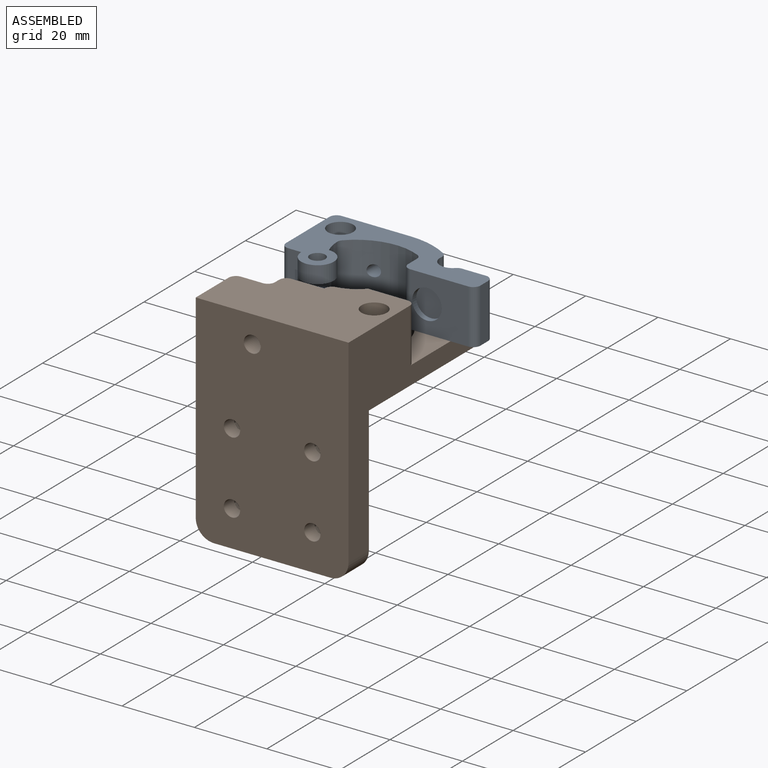
[diagram: assembled view]
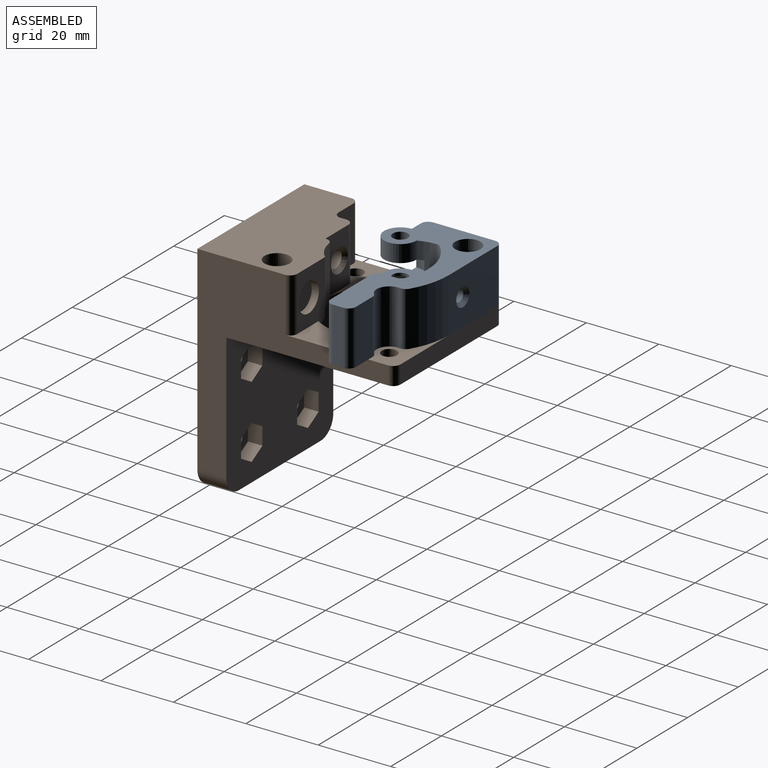
[diagram: assembled view, second angle]
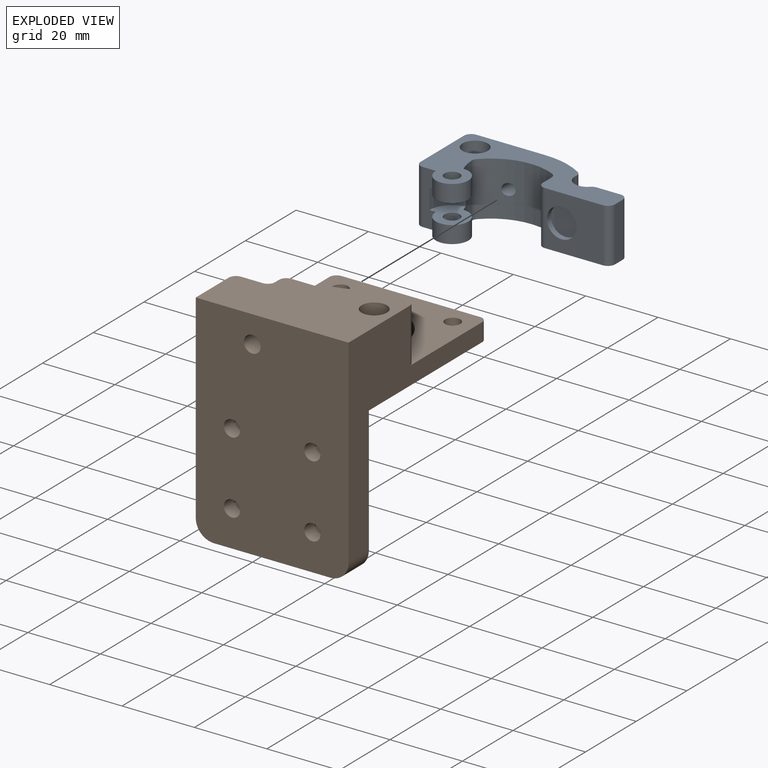
[diagram: exploded view]
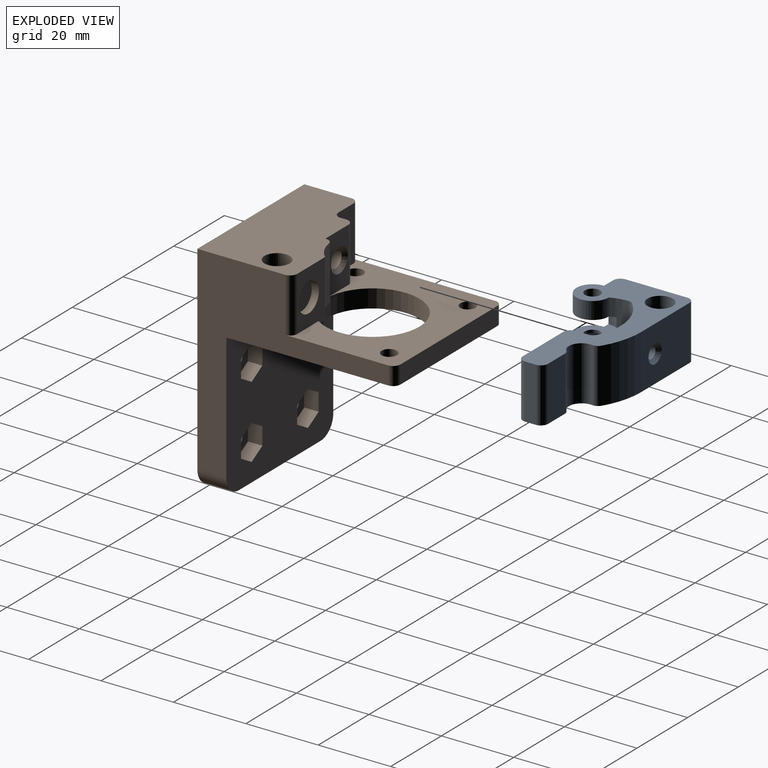
[diagram: exploded view, second angle]
ASSEMBLY  parts=2 mates=4
PART A: 45 faces, bbox 49.1x25.6x15 mm
  f0: cylinder r=2.12mm len=4.25mm, axis (0,0,-1), area 40.1mm2, adj f42,f44
  f1: cylinder r=2.12mm len=4.25mm, axis (0,0,-1), area 10mm2, adj f30,f38
  f2: plane 49.1x25.6mm, normal (0,0,-1), area 449.8mm2, adj f3,f4,f5,f6,f7,f8,f9,f11
  f3: plane 15x3.6mm, normal (0,-1,0), area 44.4mm2, adj f2,f4,f10,f17,f20,f29,f30,f31
  f4: cylinder r=4.5mm len=9mm, axis (0,0,-1), area 100.7mm2, adj f2,f3,f5,f30
  f5: cylinder r=12mm len=15mm, axis (0,0,-1), area 61.8mm2, adj f2,f4,f10,f17,f21,f29,f30,f31
  f6: cylinder r=3.5mm len=15mm, axis (0,0,-1), area 130.7mm2, adj f2,f17,f18,f26
  f7: cylinder r=21.54mm len=15mm, axis (0,0,-1), area 175.1mm2, adj f2,f8,f17,f18
  f8: plane 19.1x15mm, normal (0,1,0), area 265.3mm2, adj f2,f7,f17,f19,f28
  f9: plane 17.1x15mm, normal (-1,0,0), area 256.5mm2, adj f2,f17,f19,f20
  f10: cylinder r=4.5mm len=9mm, axis (0,0,-1), area 100.7mm2, adj f3,f5,f17,f31
  f11: cylinder r=15.91mm len=18.3mm, axis (0,0,-1), area 289.2mm2, adj f2,f17,f21,f22,f27
  f12: plane 15x3.45mm, normal (-1,0,0), area 51.8mm2, adj f2,f17,f22,f23
  f13: plane 16x15mm, normal (0,-1,0), area 187.8mm2, adj f2,f17,f23,f24,f39
  f14: plane 15x3mm, normal (1,0,0), area 45mm2, adj f2,f17,f24,f25
  f15: cylinder r=2.12mm len=4.75mm, axis (0,0,-1), area 63.4mm2, adj f17,f31
  f16: plane 15x6.62mm, normal (0,1,0), area 99.3mm2, adj f2,f17,f25,f26
  f17: plane 49.1x25.6mm, normal (0,0,1), area 477.5mm2, adj f3,f5,f6,f7,f8,f9,f10,f11
  f18: cylinder r=2mm len=15mm, axis (0,0,1), area 34.8mm2, adj f2,f6,f7,f17
  f19: cylinder r=2mm len=15mm, axis (0,0,-1), area 47.1mm2, adj f2,f8,f9,f17
  f20: cylinder r=2mm len=15mm, axis (0,0,-1), area 47.1mm2, adj f2,f3,f9,f17
  f21: cylinder r=2mm len=15mm, axis (0,0,1), area 23.4mm2, adj f2,f5,f11,f17
  f22: cylinder r=2mm len=15mm, axis (0,0,-1), area 33.7mm2, adj f2,f11,f12,f17
  f23: cylinder r=2mm len=15mm, axis (0,0,-1), area 47.1mm2, adj f2,f12,f13,f17
  f24: cylinder r=2mm len=15mm, axis (0,0,-1), area 47.1mm2, adj f2,f13,f14,f17
  f25: cylinder r=2mm len=15mm, axis (0,0,-1), area 47.1mm2, adj f2,f14,f16,f17
  f26: cylinder r=2mm len=15mm, axis (0,0,-1), area 23.5mm2, adj f2,f6,f16,f17
  f27: cylinder r=1.6mm len=6.36mm, axis (0,1,0), area 57.5mm2, adj f11,f28
  f28: cone r=1.6mm half-angle=45deg, axis (0,1,0), area 18.7mm2, adj f8,f27
  f29: cylinder r=6.25mm len=6.22mm, axis (0,0,1), area 50.7mm2, adj f3,f5,f30,f31
  f30: plane 10.75x10.72mm, normal (0,0,1), area 63.6mm2, adj f1,f3,f4,f5,f29
  f31: plane 10.75x10.72mm, normal (0,0,-1), area 63.6mm2, adj f3,f5,f10,f15,f29
  f32: plane 4x2.95mm, normal (-0.87,0.5,0), area 13.6mm2, adj f2,f33,f37,f38
  f33: plane 4x3.41mm, normal (0,1,0), area 13.6mm2, adj f2,f32,f34,f38
  f34: plane 4x2.95mm, normal (0.87,0.5,0), area 13.6mm2, adj f2,f33,f35,f38
  f35: plane 4x2.95mm, normal (0.87,-0.5,0), area 13.6mm2, adj f2,f34,f36,f38
  f36: plane 4x3.41mm, normal (0,-1,0), area 13.6mm2, adj f2,f35,f37,f38
  f37: plane 4x2.95mm, normal (-0.87,-0.5,0), area 13.6mm2, adj f2,f32,f36,f38
  f38: plane 6.81x5.9mm, normal (0,0,-1), area 16mm2, adj f1,f32,f33,f34,f35,f36,f37
  f39: cylinder r=4.07mm len=8.15mm, axis (0,-1,0), area 41mm2, adj f13,f40
  f40: plane 8.15x8.15mm, normal (0,-1,0), area 52.2mm2, adj f39
  f41: cylinder r=3.5mm len=11mm, axis (0,0,1), area 241.9mm2, adj f17,f42
  f42: plane 7x7mm, normal (0,0,1), area 24.3mm2, adj f0,f41
  f43: cylinder r=4mm len=8mm, axis (0,0,-1), area 25.1mm2, adj f2,f44
  f44: plane 8x8mm, normal (0,0,-1), area 36.1mm2, adj f0,f43
PART B: 68 faces, bbox 42.2x54.7x60 mm
  f0: plane 42.2x40mm, normal (0,1,0), area 1429.9mm2, adj f6,f9,f16,f37,f39,f40,f41,f42
  f1: cylinder r=2.25mm len=4.5mm, axis (0,-1,0), area 56.5mm2, adj f5,f59
  f2: cylinder r=2.25mm len=4.5mm, axis (0,-1,0), area 56.5mm2, adj f5,f58
  f3: cylinder r=2.25mm len=4.5mm, axis (0,-1,0), area 56.5mm2, adj f5,f51
  f4: cylinder r=2.25mm len=4.5mm, axis (0,-1,0), area 56.5mm2, adj f5,f38
  f5: plane 60x42.2mm, normal (0,-1,0), area 2440.7mm2, adj f1,f2,f3,f4,f9,f16,f24,f25
  f6: plane 46.7x42.2mm, normal (0,0,-1), area 1381.3mm2, adj f0,f9,f10,f11,f12,f13,f14,f15
  f7: plane 42.2x41.7mm, normal (0,0,1), area 845.4mm2, adj f9,f10,f11,f12,f14,f15,f16,f17
  f8: plane 7x7mm, normal (0,0,1), area 24.3mm2, adj f13,f23
  f9: plane 55x52.7mm, normal (1,0,0), area 906.5mm2, adj f0,f5,f6,f7,f24,f32,f34,f66
  f10: plane 38.2x5mm, normal (0,1,0), area 191mm2, adj f6,f7,f34,f35
  f11: cylinder r=2.12mm len=5mm, axis (0,0,-1), area 66.8mm2, adj f6,f7
  f12: cylinder r=2.12mm len=5mm, axis (0,0,-1), area 66.8mm2, adj f6,f7
  f13: cylinder r=2.12mm len=5mm, axis (0,0,-1), area 66.8mm2, adj f6,f8
  f14: cylinder r=2.12mm len=5mm, axis (0,0,-1), area 66.8mm2, adj f6,f7
  f15: cylinder r=13mm len=26mm, axis (0,0,-1), area 383.3mm2, adj f6,f7,f17,f19,f28
  f16: plane 55x52.7mm, normal (-1,0,0), area 738.5mm2, adj f0,f5,f6,f7,f24,f31,f35,f67
  f17: plane 17x10.96mm, normal (0,1,0), area 114.8mm2, adj f7,f15,f18,f24,f26,f28,f32
  f18: cylinder r=11mm len=15mm, axis (0,0,-1), area 111.9mm2, adj f17,f24,f28,f33
  f19: plane 17x0.15mm, normal (-1,0,0), area 2.6mm2, adj f15,f20,f24,f28,f33
  f20: plane 15x9.1mm, normal (0,1,0), area 101.8mm2, adj f7,f19,f24,f29,f36
  f21: plane 15x1.6mm, normal (-1,0,0), area 24mm2, adj f7,f24,f29,f30
  f22: plane 15x6mm, normal (0,1,0), area 90mm2, adj f7,f24,f30,f31
  f23: cylinder r=3.5mm len=15mm, axis (0,0,-1), area 329.9mm2, adj f8,f24
  f24: plane 42.2x26.2mm, normal (0,0,1), area 870.3mm2, adj f5,f9,f16,f17,f18,f19,f20,f21
  f25: cylinder r=2.32mm len=19.6mm, axis (0,-1,0), area 286.3mm2, adj f5,f36
  f26: cylinder r=4.07mm len=8.15mm, axis (0,1,0), area 51.2mm2, adj f17,f27
  f27: plane 8.15x8.15mm, normal (0,1,0), area 52.2mm2, adj f26
  f28: cone r=13mm half-angle=45deg, axis (0,0,-1), area 29.8mm2, adj f15,f17,f18,f19,f33
  f29: cylinder r=2mm len=15mm, axis (0,0,1), area 47.1mm2, adj f7,f20,f21,f24
  f30: cylinder r=2mm len=15mm, axis (0,0,1), area 47.1mm2, adj f7,f21,f22,f24
  f31: cylinder r=2mm len=15mm, axis (0,0,1), area 47.1mm2, adj f7,f16,f22,f24
  f32: cylinder r=2mm len=15mm, axis (0,0,-1), area 47.1mm2, adj f7,f9,f17,f24
  f33: cylinder r=2mm len=16.85mm, axis (0,0,-1), area 44.4mm2, adj f18,f19,f24,f28
  f34: cylinder r=2mm len=5mm, axis (0,0,1), area 15.7mm2, adj f6,f7,f9,f10
  f35: cylinder r=2mm len=5mm, axis (0,0,-1), area 15.7mm2, adj f6,f7,f10,f16
  f36: cone r=3.32mm half-angle=45deg, axis (0,1,0), area 25.1mm2, adj f20,f25
  f37: plane 32.2x8mm, normal (0,0,-1), area 257.6mm2, adj f0,f5,f66,f67
  f38: plane 9.76x8.45mm, normal (0,1,0), area 45.9mm2, adj f4,f39,f40,f41,f42,f43,f44
  f39: plane 4.23x4mm, normal (-0.5,0,-0.87), area 19.5mm2, adj f0,f38,f40,f44
  f40: plane 4.88x4mm, normal (-1,0,0), area 19.5mm2, adj f0,f38,f39,f41
  f41: plane 4.23x4mm, normal (-0.5,0,0.87), area 19.5mm2, adj f0,f38,f40,f42
  f42: plane 4.23x4mm, normal (0.5,0,0.87), area 19.5mm2, adj f0,f38,f41,f43
  f43: plane 4.88x4mm, normal (1,0,0), area 19.5mm2, adj f0,f38,f42,f44
  f44: plane 4.23x4mm, normal (0.5,0,-0.87), area 19.5mm2, adj f0,f38,f39,f43
  f45: plane 4.23x4mm, normal (0.5,0,-0.87), area 19.5mm2, adj f0,f46,f50,f51
  f46: plane 4.23x4mm, normal (-0.5,0,-0.87), area 19.5mm2, adj f0,f45,f47,f51
  f47: plane 4.88x4mm, normal (-1,0,0), area 19.5mm2, adj f0,f46,f48,f51
  f48: plane 4.23x4mm, normal (-0.5,0,0.87), area 19.5mm2, adj f0,f47,f49,f51
  f49: plane 4.23x4mm, normal (0.5,0,0.87), area 19.5mm2, adj f0,f48,f50,f51
  f50: plane 4.88x4mm, normal (1,0,0), area 19.5mm2, adj f0,f45,f49,f51
  f51: plane 9.76x8.45mm, normal (0,1,0), area 45.9mm2, adj f3,f45,f46,f47,f48,f49,f50
  f52: plane 4.23x4mm, normal (0.5,0,-0.87), area 19.5mm2, adj f0,f53,f57,f58
  f53: plane 4.23x4mm, normal (-0.5,0,-0.87), area 19.5mm2, adj f0,f52,f54,f58
  f54: plane 4.88x4mm, normal (-1,0,0), area 19.5mm2, adj f0,f53,f55,f58
  f55: plane 4.23x4mm, normal (-0.5,0,0.87), area 19.5mm2, adj f0,f54,f56,f58
  f56: plane 4.23x4mm, normal (0.5,0,0.87), area 19.5mm2, adj f0,f55,f57,f58
  f57: plane 4.88x4mm, normal (1,0,0), area 19.5mm2, adj f0,f52,f56,f58
  f58: plane 9.76x8.45mm, normal (0,1,0), area 45.9mm2, adj f2,f52,f53,f54,f55,f56,f57
  f59: plane 9.76x8.45mm, normal (0,1,0), area 45.9mm2, adj f1,f60,f61,f62,f63,f64,f65
  f60: plane 4.23x4mm, normal (0.5,0,0.87), area 19.5mm2, adj f0,f59,f61,f65
  f61: plane 4.88x4mm, normal (1,0,0), area 19.5mm2, adj f0,f59,f60,f62
  f62: plane 4.23x4mm, normal (0.5,0,-0.87), area 19.5mm2, adj f0,f59,f61,f63
  f63: plane 4.23x4mm, normal (-0.5,0,-0.87), area 19.5mm2, adj f0,f59,f62,f64
  f64: plane 4.88x4mm, normal (-1,0,0), area 19.5mm2, adj f0,f59,f63,f65
  f65: plane 4.23x4mm, normal (-0.5,0,0.87), area 19.5mm2, adj f0,f59,f60,f64
  f66: cylinder r=5mm len=8mm, axis (0,-1,0), area 62.8mm2, adj f0,f5,f9,f37
  f67: cylinder r=5mm len=8mm, axis (0,1,0), area 62.8mm2, adj f0,f5,f16,f37
PLACE A t=(4.9,-45.61,11.94)mm
PLACE B t=(4.9,-45.61,-0.56)mm
MATE planar A.f8 <-> B.f10  axis (0,1,0) through (-4.65,-24.51,4.44)mm
MATE cylindrical B.f11 <-> A.f0  axis (0,0,-1) through (-10.6,-30.11,4.44)mm
MATE planar A.f2 <-> B.f7  axis (0,0,-1) through (-4.65,-24.51,4.44)mm
MATE cylindrical A.f27 <-> B.f25  axis (0,1,0) through (-0.6,-28.71,11.94)mm
